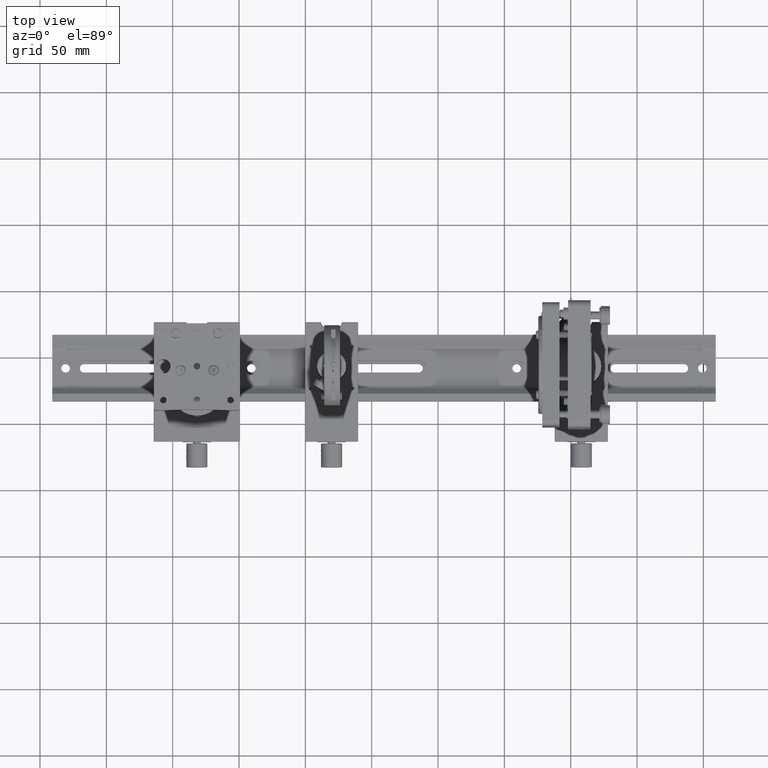
[diagram: clean part render]
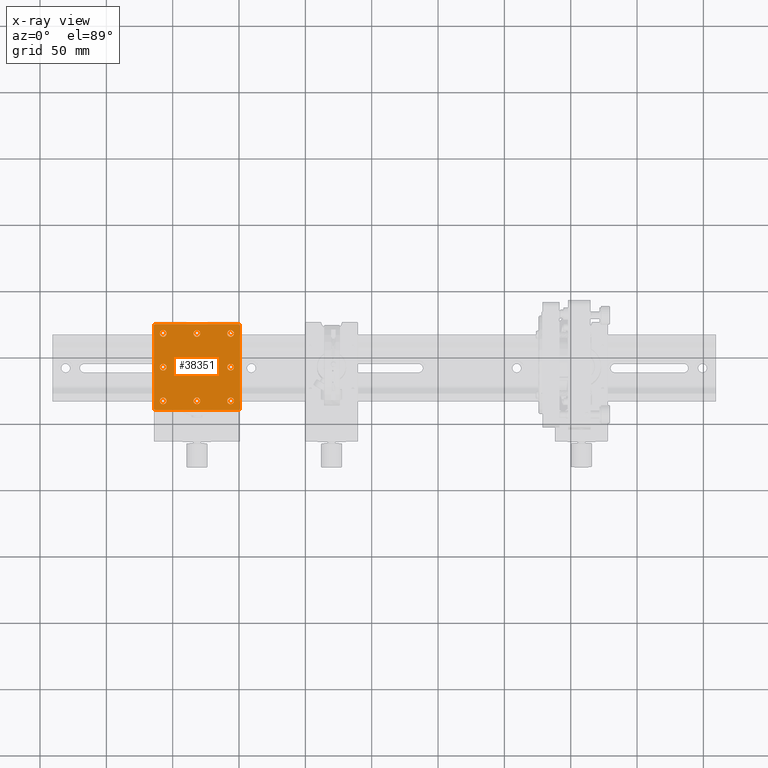
[diagram: x-ray — body ghosted, one internal face saturated and labeled with its STEP entity id]
A machine part, top view, then the same camera in x-ray: the body is ghosted and one INTERNAL B-rep face — a face not visible from any outside direction — is saturated and labeled: STEP entity #38351.
In plain terms, the highlighted planar face has unit normal (-0, 0, 1).
Its self-contained STEP definition (entity closure, byte-faithful):
#2050=LINE('',#59895,#5360);
#2065=LINE('',#59943,#5375);
#2067=LINE('',#59947,#5377);
#2070=LINE('',#59953,#5380);
#2078=LINE('',#59967,#5388);
#2080=LINE('',#59971,#5390);
#2130=LINE('',#60126,#5440);
#2131=LINE('',#60128,#5441);
#5360=VECTOR('',#47188,1.4142135623731);
#5375=VECTOR('',#47225,63.);
#5377=VECTOR('',#47229,1.41421356237309);
#5380=VECTOR('',#47234,1.41421356237309);
#5388=VECTOR('',#47244,63.);
#5390=VECTOR('',#47248,1.41421356237309);
#5440=VECTOR('',#47418,63.);
#5441=VECTOR('',#47421,63.);
#8586=FACE_BOUND('',#11889,.T.);
#8587=FACE_BOUND('',#11890,.T.);
#8588=FACE_BOUND('',#11891,.T.);
#8589=FACE_BOUND('',#11892,.T.);
#8590=FACE_BOUND('',#11893,.T.);
#8591=FACE_BOUND('',#11894,.T.);
#8592=FACE_BOUND('',#11895,.T.);
#8593=FACE_BOUND('',#11896,.T.);
#8594=FACE_BOUND('',#11897,.T.);
#9504=FACE_OUTER_BOUND('',#11888,.T.);
#11888=EDGE_LOOP('',(#27898,#27899,#27900,#27901,#27902,#27903,#27904,#27905));
#11889=EDGE_LOOP('',(#27906));
#11890=EDGE_LOOP('',(#27907));
#11891=EDGE_LOOP('',(#27908));
#11892=EDGE_LOOP('',(#27909));
#11893=EDGE_LOOP('',(#27910));
#11894=EDGE_LOOP('',(#27911));
#11895=EDGE_LOOP('',(#27912));
#11896=EDGE_LOOP('',(#27913));
#11897=EDGE_LOOP('',(#27914));
#14398=CIRCLE('',#41390,2.489);
#14400=CIRCLE('',#41393,2.489);
#14401=CIRCLE('',#41395,2.489);
#14402=CIRCLE('',#41397,2.489);
#14403=CIRCLE('',#41399,2.489);
#14404=CIRCLE('',#41401,2.489);
#14405=CIRCLE('',#41403,2.489);
#14406=CIRCLE('',#41405,2.489);
#14410=CIRCLE('',#41411,2.489);
#16769=VERTEX_POINT('',#59892);
#16770=VERTEX_POINT('',#59894);
#16792=VERTEX_POINT('',#59942);
#16793=VERTEX_POINT('',#59946);
#16794=VERTEX_POINT('',#59950);
#16795=VERTEX_POINT('',#59952);
#16800=VERTEX_POINT('',#59965);
#16801=VERTEX_POINT('',#59969);
#16802=VERTEX_POINT('',#59973);
#16804=VERTEX_POINT('',#59979);
#16805=VERTEX_POINT('',#59983);
#16806=VERTEX_POINT('',#59987);
#16807=VERTEX_POINT('',#59991);
#16808=VERTEX_POINT('',#59995);
#16809=VERTEX_POINT('',#59999);
#16810=VERTEX_POINT('',#60003);
#16816=VERTEX_POINT('',#60019);
#20862=EDGE_CURVE('',#16769,#16770,#2050,.T.);
#20886=EDGE_CURVE('',#16792,#16770,#2065,.T.);
#20888=EDGE_CURVE('',#16792,#16793,#2067,.T.);
#20891=EDGE_CURVE('',#16794,#16795,#2070,.T.);
#20899=EDGE_CURVE('',#16794,#16800,#2078,.T.);
#20901=EDGE_CURVE('',#16801,#16800,#2080,.T.);
#20903=EDGE_CURVE('',#16802,#16802,#14398,.T.);
#20906=EDGE_CURVE('',#16804,#16804,#14400,.T.);
#20908=EDGE_CURVE('',#16805,#16805,#14401,.T.);
#20910=EDGE_CURVE('',#16806,#16806,#14402,.T.);
#20912=EDGE_CURVE('',#16807,#16807,#14403,.T.);
#20914=EDGE_CURVE('',#16808,#16808,#14404,.T.);
#20916=EDGE_CURVE('',#16809,#16809,#14405,.T.);
#20918=EDGE_CURVE('',#16810,#16810,#14406,.T.);
#20926=EDGE_CURVE('',#16816,#16816,#14410,.T.);
#20978=EDGE_CURVE('',#16769,#16795,#2130,.T.);
#20979=EDGE_CURVE('',#16801,#16793,#2131,.T.);
#27898=ORIENTED_EDGE('',*,*,#20862,.F.);
#27899=ORIENTED_EDGE('',*,*,#20978,.T.);
#27900=ORIENTED_EDGE('',*,*,#20891,.F.);
#27901=ORIENTED_EDGE('',*,*,#20899,.T.);
#27902=ORIENTED_EDGE('',*,*,#20901,.F.);
#27903=ORIENTED_EDGE('',*,*,#20979,.T.);
#27904=ORIENTED_EDGE('',*,*,#20888,.F.);
#27905=ORIENTED_EDGE('',*,*,#20886,.T.);
#27906=ORIENTED_EDGE('',*,*,#20903,.T.);
#27907=ORIENTED_EDGE('',*,*,#20906,.T.);
#27908=ORIENTED_EDGE('',*,*,#20908,.T.);
#27909=ORIENTED_EDGE('',*,*,#20910,.T.);
#27910=ORIENTED_EDGE('',*,*,#20912,.T.);
#27911=ORIENTED_EDGE('',*,*,#20914,.T.);
#27912=ORIENTED_EDGE('',*,*,#20916,.T.);
#27913=ORIENTED_EDGE('',*,*,#20918,.T.);
#27914=ORIENTED_EDGE('',*,*,#20926,.T.);
#36949=PLANE('',#41450);
#38351=ADVANCED_FACE('',(#9504,#8586,#8587,#8588,#8589,#8590,#8591,#8592,
#8593,#8594),#36949,.T.);
#41390=AXIS2_PLACEMENT_3D('',#59975,#47252,#47253);
#41393=AXIS2_PLACEMENT_3D('',#59981,#47259,#47260);
#41395=AXIS2_PLACEMENT_3D('',#59985,#47264,#47265);
#41397=AXIS2_PLACEMENT_3D('',#59989,#47269,#47270);
#41399=AXIS2_PLACEMENT_3D('',#59993,#47274,#47275);
#41401=AXIS2_PLACEMENT_3D('',#59997,#47279,#47280);
#41403=AXIS2_PLACEMENT_3D('',#60001,#47284,#47285);
#41405=AXIS2_PLACEMENT_3D('',#60005,#47289,#47290);
#41411=AXIS2_PLACEMENT_3D('',#60021,#47305,#47306);
#41450=AXIS2_PLACEMENT_3D('',#60129,#47422,#47423);
#47188=DIRECTION('',(0.707106781186548,-0.707106781186548,1.96261552982318E-16));
#47225=DIRECTION('',(3.50795400000001E-17,1.,-2.220446E-16));
#47229=DIRECTION('',(-0.707106781186545,-0.70710678118655,1.17756931789392E-16));
#47234=DIRECTION('',(0.707106781186545,0.70710678118655,-1.17756931789392E-16));
#47244=DIRECTION('',(-3.50795400000001E-17,-1.,2.220446E-16));
#47248=DIRECTION('',(-0.70710678118655,0.707106781186545,-1.96261552982318E-16));
#47252=DIRECTION('center_axis',(5.551115E-17,-2.220446E-16,-1.));
#47253=DIRECTION('ref_axis',(1.,-3.507954E-17,5.551115E-17));
#47259=DIRECTION('center_axis',(5.551115E-17,-2.220446E-16,-1.));
#47260=DIRECTION('ref_axis',(1.,-3.507954E-17,5.551115E-17));
#47264=DIRECTION('center_axis',(5.551115E-17,-2.220446E-16,-1.));
#47265=DIRECTION('ref_axis',(1.,-3.507954E-17,5.551115E-17));
#47269=DIRECTION('center_axis',(5.551115E-17,-2.220446E-16,-1.));
#47270=DIRECTION('ref_axis',(1.,-3.507954E-17,5.551115E-17));
#47274=DIRECTION('center_axis',(5.551115E-17,-2.220446E-16,-1.));
#47275=DIRECTION('ref_axis',(1.,-3.507954E-17,5.551115E-17));
#47279=DIRECTION('center_axis',(5.551115E-17,-2.220446E-16,-1.));
#47280=DIRECTION('ref_axis',(1.,-3.507954E-17,5.551115E-17));
#47284=DIRECTION('center_axis',(5.551115E-17,-2.220446E-16,-1.));
#47285=DIRECTION('ref_axis',(1.,-3.507954E-17,5.551115E-17));
#47289=DIRECTION('center_axis',(5.551115E-17,-2.220446E-16,-1.));
#47290=DIRECTION('ref_axis',(1.,-3.507954E-17,5.551115E-17));
#47305=DIRECTION('center_axis',(5.551115E-17,-2.220446E-16,-1.));
#47306=DIRECTION('ref_axis',(1.,-3.507954E-17,5.551115E-17));
#47418=DIRECTION('',(-1.,3.507954E-17,-5.551115E-17));
#47421=DIRECTION('',(1.,-3.507954E-17,5.551115E-17));
#47422=DIRECTION('center_axis',(-5.551115E-17,2.220446E-16,1.));
#47423=DIRECTION('ref_axis',(1.,-3.507954E-17,5.551115E-17));
#59892=CARTESIAN_POINT('',(31.5,32.5,23.));
#59894=CARTESIAN_POINT('',(32.5,31.5,23.));
#59895=CARTESIAN_POINT('',(31.5,32.5,23.));
#59942=CARTESIAN_POINT('',(32.5,-31.5,23.));
#59943=CARTESIAN_POINT('',(32.5,-31.5,23.));
#59946=CARTESIAN_POINT('',(31.5,-32.5,23.));
#59947=CARTESIAN_POINT('',(32.5,-31.5,23.));
#59950=CARTESIAN_POINT('',(-32.5,31.5,23.));
#59952=CARTESIAN_POINT('',(-31.5,32.5,23.));
#59953=CARTESIAN_POINT('',(-32.5,31.5,23.));
#59965=CARTESIAN_POINT('',(-32.5,-31.5,23.));
#59967=CARTESIAN_POINT('',(-32.5,31.5,23.));
#59969=CARTESIAN_POINT('',(-31.5,-32.5,23.));
#59971=CARTESIAN_POINT('',(-31.5,-32.5,23.));
#59973=CARTESIAN_POINT('',(-22.911,-25.4,23.));
#59975=CARTESIAN_POINT('Origin',(-25.4,-25.4,23.));
#59979=CARTESIAN_POINT('',(-22.911,1.856727734094E-14,23.));
#59981=CARTESIAN_POINT('Origin',(-25.4,1.8654590316E-14,23.));
#59983=CARTESIAN_POINT('',(-22.911,25.4,23.));
#59985=CARTESIAN_POINT('Origin',(-25.4,25.4,23.));
#59987=CARTESIAN_POINT('',(2.48899999999999,25.4,23.));
#59989=CARTESIAN_POINT('Origin',(-9.160939684E-15,25.4,23.));
#59991=CARTESIAN_POINT('',(2.489,-25.4,23.));
#59993=CARTESIAN_POINT('Origin',(3.549871684E-15,-25.4,23.));
#59995=CARTESIAN_POINT('',(27.889,-25.4,23.));
#59997=CARTESIAN_POINT('Origin',(25.4,-25.4,23.));
#59999=CARTESIAN_POINT('',(27.889,2.163110070894E-14,23.));
#60001=CARTESIAN_POINT('Origin',(25.4,2.1718413684E-14,23.));
#60003=CARTESIAN_POINT('',(27.889,25.4,23.));
#60005=CARTESIAN_POINT('Origin',(25.4,25.4,23.));
#60019=CARTESIAN_POINT('',(2.489,1.767625702494E-14,23.));
#60021=CARTESIAN_POINT('Origin',(0.,1.776357E-14,23.));
#60126=CARTESIAN_POINT('',(31.5,32.5,23.));
#60128=CARTESIAN_POINT('',(-31.5,-32.5,23.));
#60129=CARTESIAN_POINT('Origin',(-7.08111034099801E-33,1.75617113E-14,23.));